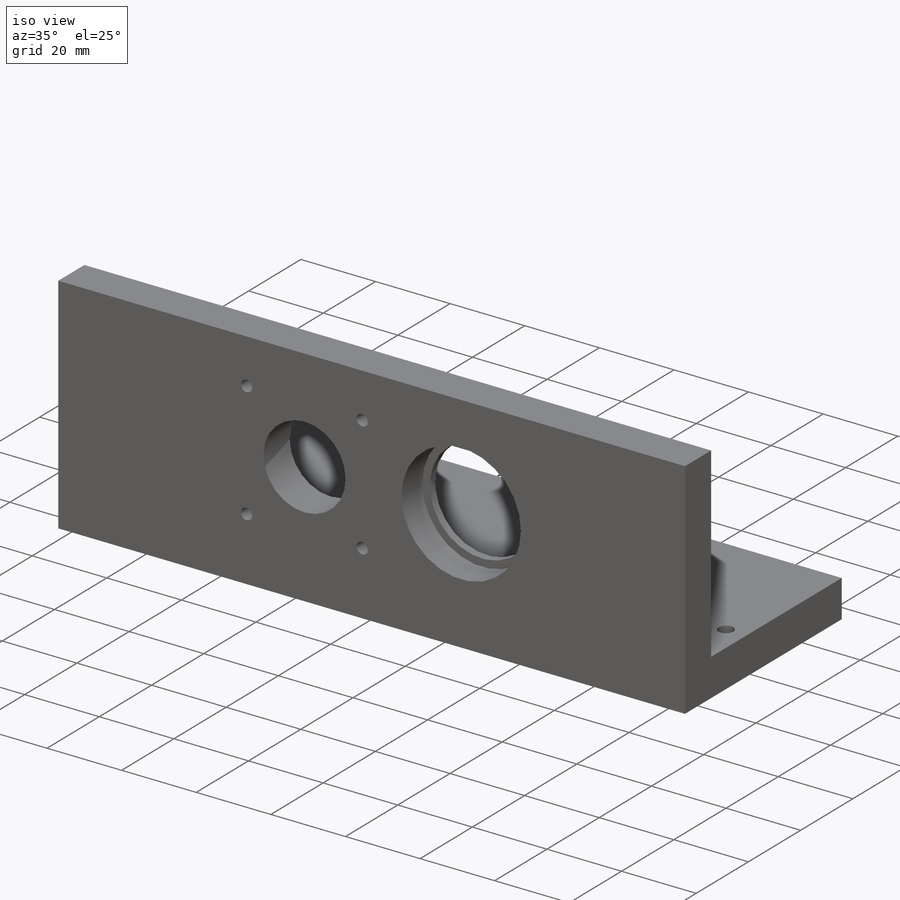
[diagram: iso view]
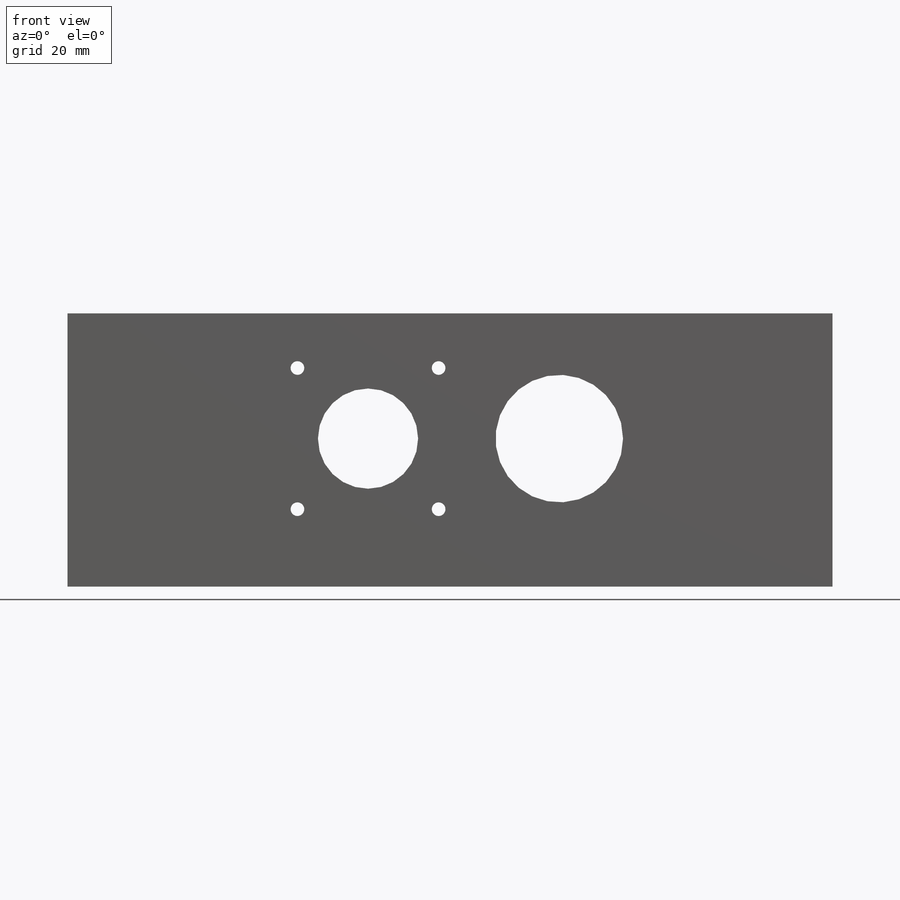
[diagram: front view]
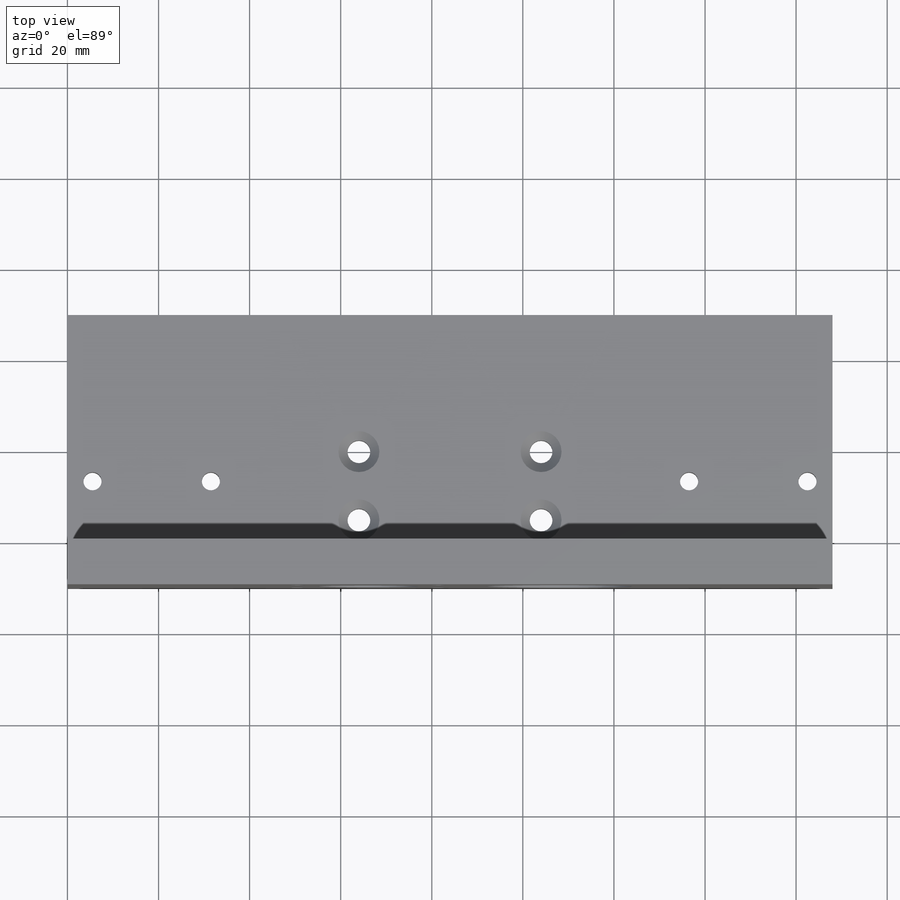
[diagram: top view]
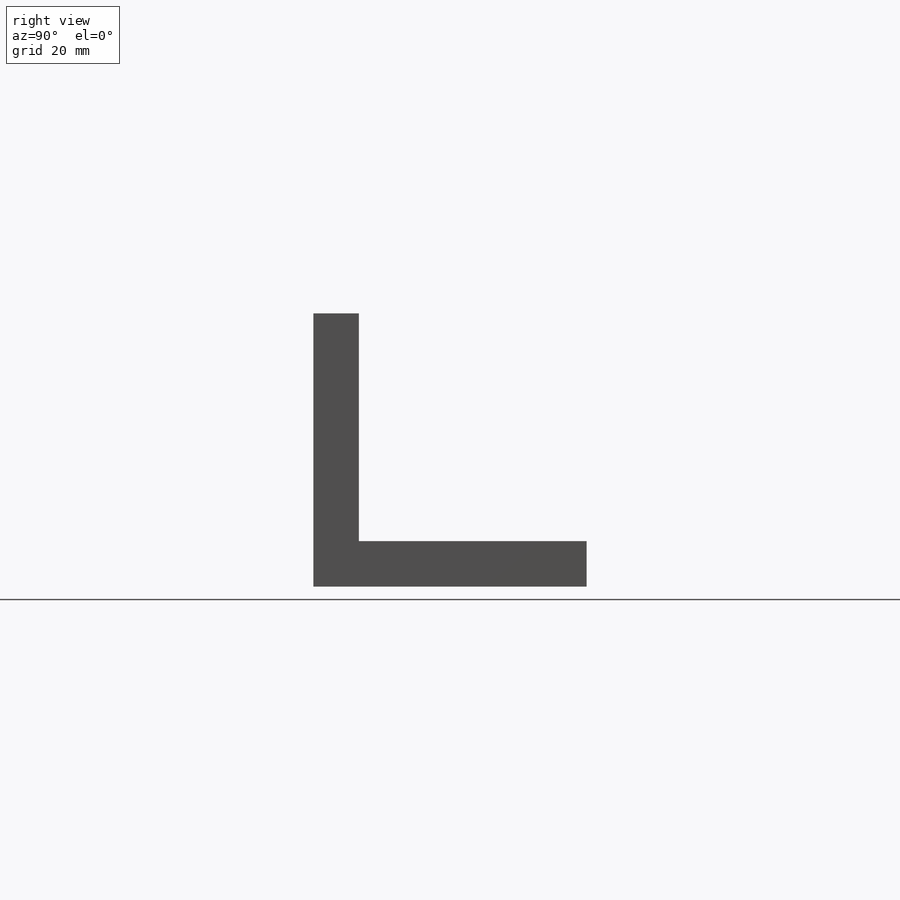
[diagram: right view]
SOLIDWORKS PART (.sldprt)
format: sldprt  version: not decoded by parser v0  size: 289,792 bytes
history: native  units: mm
features: sketch x8, cut_extrude x6, chamfer x4, plane x3, extrude x2, material x1 (+9 scaffold rows collapsed)
feature tree (33):
  scaffold x9  (default folders/planes/origin — collapsed)
  material  "Material <nicht festgelegt>"
  plane  "Ebene vorne"
  plane  "Ebene oben"
  plane  "Ebene rechts"
  sketch  "Skizze1"  dims[D1=168.0mm D2=60.0mm]
  extrude  "Aufsatz-Linear austragen1"  Depth=10mm
  sketch  "Skizze2"  dims[c1.D3=28.0mm c1.D1=60.0mm c1.D2=~74.380579mm c2.D2=90.0deg c3.D2=~74.380579mm c4.D2=90.0deg c5.D2=32.5mm]
  cut_extrude  "Schnitt-Linear austragen1"  Depth=27mm
  sketch  "Skizze3"  dims[D1=32.0mm]
  cut_extrude  "Schnitt-Linear austragen2"  Depth=8mm
  sketch  "Skizze4"  dims[D2=22.0mm D1=102.0mm D3=~32.50089mm]
  cut_extrude  "Schnitt-Linear austragen3"  Depth=21.6mm
  sketch  "Skizze5"  dims[D1=10.0mm]
  extrude  "Aufsatz-Linear austragen2"  Depth=50mm
  sketch  "Skizze6"  dims[c1.D1=5.5mm c1.D2=36.5mm c1.D3=~10.467183mm c2.D3=90.0deg c3.D3=5.5mm c3.D4=26.0mm c3.D5=5.5mm c3.D6=26.0mm c3.D7=36.5mm]
  cut_extrude  "Schnitt-Linear austragen4"  Depth=10mm
  sketch  "Skizze7"  dims[D1=5.0mm D2=30.0mm D3=15.0mm D4=64.0mm D5=64.0mm]
  cut_extrude  "Schnitt-Linear austragen5"  Depth=10mm
  sketch  "Skizze8"  dims[c1.D1=3.0mm c1.D2=50.5mm c1.D3=12.4mm c1.D4=31.0mm c1.D5=31.0mm c2.D3=12.0mm]
  cut_extrude  "Schnitt-Linear austragen6"  Depth=27mm
  chamfer  "Fase1"  Distance=2mm Angle=45deg
  chamfer  "Fase2"  Distance=2mm Angle=45deg
  chamfer  "Fase3"  Distance=2mm Angle=45deg
  chamfer  "Fase4"  Distance=2mm Angle=45deg
decode coverage: 20 of 20 modeling features carry decoded parameters
note: ~ marks probable driven/reference dimensions
note: suppression state not decoded; provenance and decode notes live in map.json
